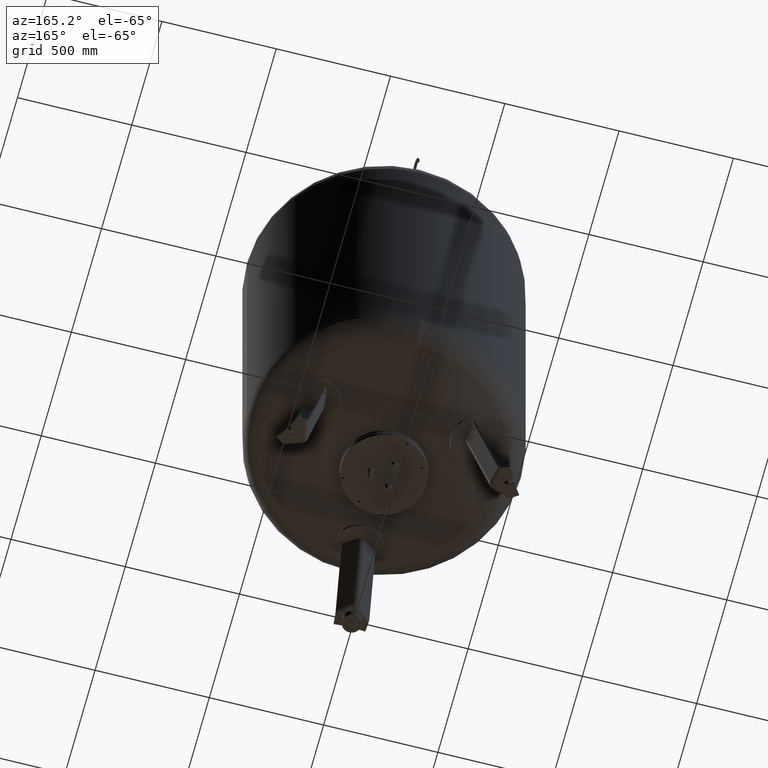
[diagram: clean part render]
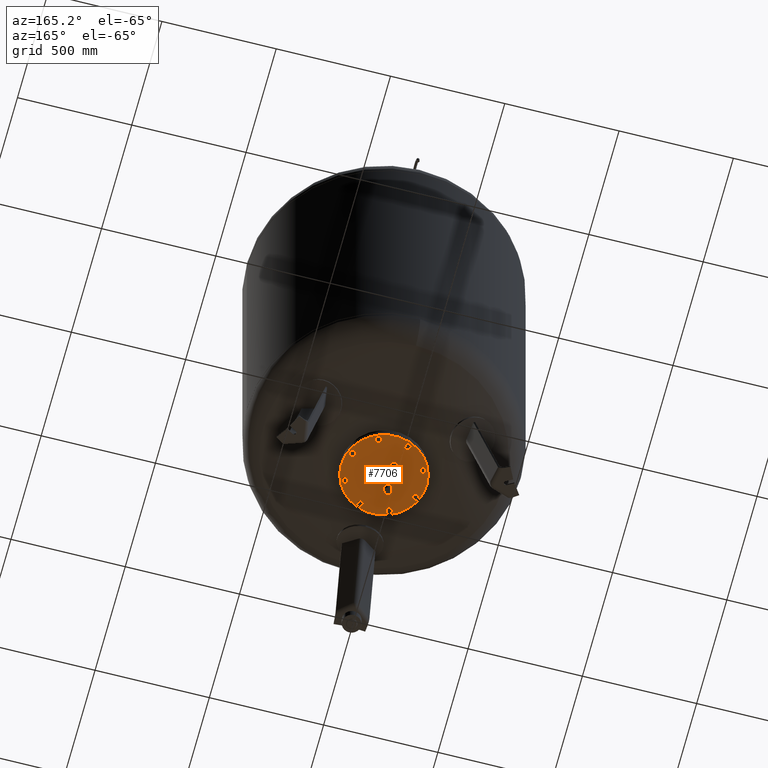
[diagram: same view with one face highlighted and labeled with its STEP entity id]
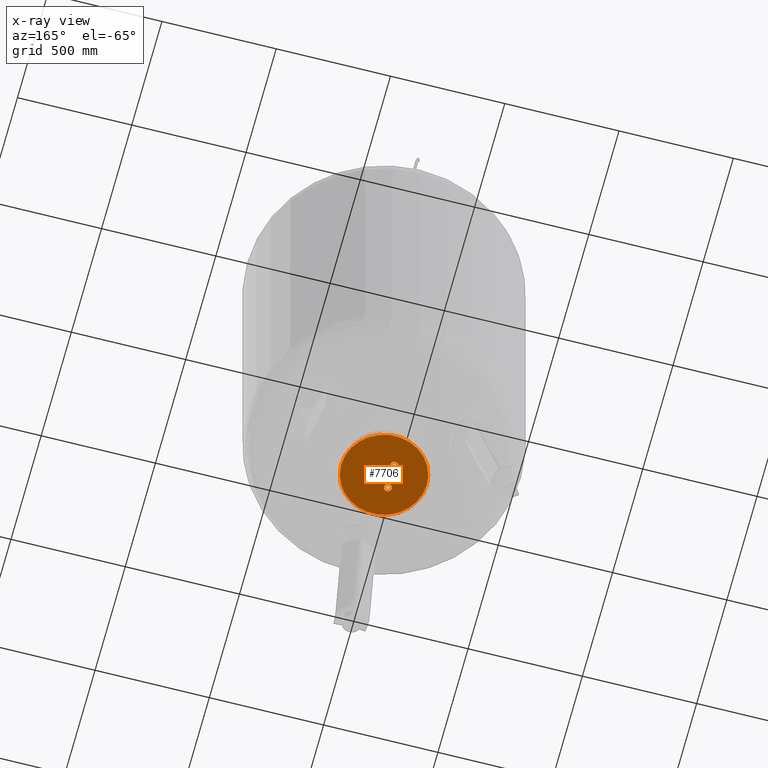
[diagram: x-ray of the same camera — body ghosted, the highlighted face saturated]
A machine part, auxiliary view. The second image highlights one B-rep face of the part: STEP entity #7706.
The next image is the same camera in x-ray: the body ghosted, the highlighted face saturated — about 0% of this face is hidden behind the body in this view.
In plain terms, the highlighted planar face has unit normal (0, 0, -1).
Its self-contained STEP definition (entity closure, byte-faithful):
#7124=CARTESIAN_POINT('',(-14.024999999999991,53.477068683689090,384.0));
#7125=VERTEX_POINT('',#7124);
#7141=CARTESIAN_POINT('',(-47.724999999999994,53.477068683689097,384.0));
#7142=VERTEX_POINT('',#7141);
#7149=CARTESIAN_POINT('',(-30.874999999999993,53.477068683689090,384.0));
#7150=DIRECTION('',(0.0,0.0,1.0));
#7151=DIRECTION('',(-1.0,0.0,0.0));
#7152=AXIS2_PLACEMENT_3D('',#7149,#7150,#7151);
#7153=CIRCLE('',#7152,16.850000000000001);
#7154=EDGE_CURVE('',#7125,#7142,#7153,.T.);
#7166=CARTESIAN_POINT('',(-14.024999999999979,-53.477068683689112,384.0));
#7167=VERTEX_POINT('',#7166);
#7183=CARTESIAN_POINT('',(-47.724999999999987,-53.477068683689104,384.0));
#7184=VERTEX_POINT('',#7183);
#7191=CARTESIAN_POINT('',(-30.874999999999982,-53.477068683689112,384.0));
#7192=DIRECTION('',(0.0,0.0,1.0));
#7193=DIRECTION('',(-1.0,0.0,0.0));
#7194=AXIS2_PLACEMENT_3D('',#7191,#7192,#7193);
#7195=CIRCLE('',#7194,16.850000000000001);
#7196=EDGE_CURVE('',#7167,#7184,#7195,.T.);
#7206=CARTESIAN_POINT('',(187.500000000000000,-6.245699E-015,384.0));
#7207=VERTEX_POINT('',#7206);
#7216=CARTESIAN_POINT('',(-187.500000000000000,1.671567E-014,384.0));
#7217=VERTEX_POINT('',#7216);
#7218=CARTESIAN_POINT('',(0.0,-6.245699E-015,384.0));
#7219=DIRECTION('',(0.0,0.0,-1.0));
#7220=DIRECTION('',(1.0,0.0,0.0));
#7221=AXIS2_PLACEMENT_3D('',#7218,#7219,#7220);
#7222=CIRCLE('',#7221,187.500000000000000);
#7223=EDGE_CURVE('',#7217,#7207,#7222,.T.);
#7376=CARTESIAN_POINT('',(48.300000000000011,-6.245699E-015,384.0));
#7377=VERTEX_POINT('',#7376);
#7393=CARTESIAN_POINT('',(75.200000000000003,-7.892849E-015,384.0));
#7394=VERTEX_POINT('',#7393);
#7401=CARTESIAN_POINT('',(61.750000000000007,-6.245699E-015,384.0));
#7402=DIRECTION('',(0.0,0.0,1.0));
#7403=DIRECTION('',(-1.0,0.0,0.0));
#7404=AXIS2_PLACEMENT_3D('',#7401,#7402,#7403);
#7405=CIRCLE('',#7404,13.449999999999999);
#7406=EDGE_CURVE('',#7377,#7394,#7405,.T.);
#7509=CARTESIAN_POINT('',(61.750000000000007,-6.245699E-015,384.0));
#7510=DIRECTION('',(0.0,0.0,1.0));
#7511=DIRECTION('',(-1.0,0.0,0.0));
#7512=AXIS2_PLACEMENT_3D('',#7509,#7510,#7511);
#7513=CIRCLE('',#7512,13.449999999999999);
#7514=EDGE_CURVE('',#7394,#7377,#7513,.T.);
#7663=CARTESIAN_POINT('',(0.0,-6.245699E-015,384.0));
#7664=DIRECTION('',(0.0,0.0,-1.0));
#7665=DIRECTION('',(1.0,0.0,0.0));
#7666=AXIS2_PLACEMENT_3D('',#7663,#7664,#7665);
#7667=CIRCLE('',#7666,187.500000000000000);
#7668=EDGE_CURVE('',#7207,#7217,#7667,.T.);
#7673=CARTESIAN_POINT('',(93.750000000000000,-6.245699E-015,384.0));
#7674=DIRECTION('',(0.0,0.0,-1.0));
#7675=DIRECTION('',(0.0,1.0,0.0));
#7676=AXIS2_PLACEMENT_3D('',#7673,#7674,#7675);
#7677=PLANE('',#7676);
#7678=ORIENTED_EDGE('',*,*,#7668,.T.);
#7679=ORIENTED_EDGE('',*,*,#7223,.T.);
#7680=EDGE_LOOP('',(#7678,#7679));
#7681=FACE_OUTER_BOUND('',#7680,.T.);
#7682=ORIENTED_EDGE('',*,*,#7514,.T.);
#7683=ORIENTED_EDGE('',*,*,#7406,.T.);
#7684=EDGE_LOOP('',(#7682,#7683));
#7685=FACE_BOUND('',#7684,.T.);
#7686=ORIENTED_EDGE('',*,*,#7154,.T.);
#7687=CARTESIAN_POINT('',(-30.874999999999993,53.477068683689090,384.0));
#7688=DIRECTION('',(0.0,0.0,1.0));
#7689=DIRECTION('',(-1.0,0.0,0.0));
#7690=AXIS2_PLACEMENT_3D('',#7687,#7688,#7689);
#7691=CIRCLE('',#7690,16.850000000000001);
#7692=EDGE_CURVE('',#7142,#7125,#7691,.T.);
#7693=ORIENTED_EDGE('',*,*,#7692,.T.);
#7694=EDGE_LOOP('',(#7686,#7693));
#7695=FACE_BOUND('',#7694,.T.);
#7696=ORIENTED_EDGE('',*,*,#7196,.T.);
#7697=CARTESIAN_POINT('',(-30.874999999999982,-53.477068683689112,384.0));
#7698=DIRECTION('',(0.0,0.0,1.0));
#7699=DIRECTION('',(-1.0,0.0,0.0));
#7700=AXIS2_PLACEMENT_3D('',#7697,#7698,#7699);
#7701=CIRCLE('',#7700,16.850000000000001);
#7702=EDGE_CURVE('',#7184,#7167,#7701,.T.);
#7703=ORIENTED_EDGE('',*,*,#7702,.T.);
#7704=EDGE_LOOP('',(#7696,#7703));
#7705=FACE_BOUND('',#7704,.T.);
#7706=ADVANCED_FACE('',(#7681,#7685,#7695,#7705),#7677,.T.);